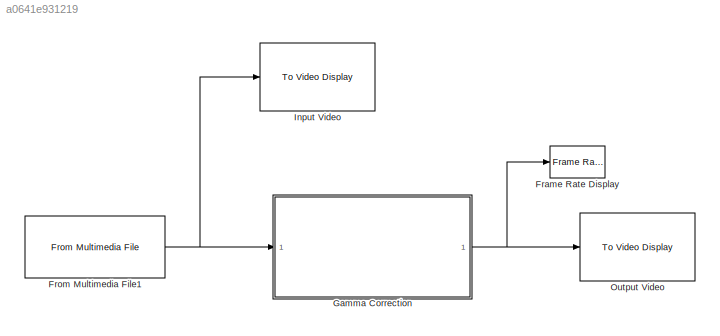
MODEL slx_a0641e931219
KIND model
CONFIG AbsTol = auto
CONFIG FixedStep = auto
CONFIG MaxStep = auto
CONFIG MinStep = auto
CONFIG PreLoadFcn = gamma = 0.45
CONFIG RelTol = 1e-3
CONFIG SampleTimeConstraint = Unconstrained
CONFIG Solver = VariableStepAuto
CONFIG SolverMode = Auto
CONFIG SolverName = VariableStepAuto
CONFIG StartTime = 0.0
CONFIG StopTime = Inf
BLOCK [Reference] Frame Rate Display  REF=visionsinks/Frame Rate
Display
  Ports = [1]
  SourceBlock = visionsinks/Frame Rate\nDisplay
  SourceType = Frame Rate Display
BLOCK [Reference] From Multimedia File1  REF=dspvision/From Multimedia File
  Ports = [0, 1]
  SourceBlock = dspvision/From Multimedia File
  SourceType = From Multimedia File
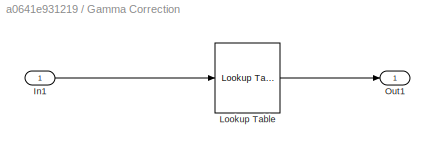
BLOCK [SubSystem] Gamma Correction
  Ports = [1, 1]
  RequestExecContextInheritance = off
  Variant = off
BLOCK [Inport] Gamma Correction/In1
  IconDisplay = Port number
BLOCK [Reference] Gamma Correction/Lookup Table  REF=ModelComposer/Lookup Table
  Description = Performs table look-up
  Ports = [1, 1]
  SourceBlock = ModelComposer/Lookup Table
  SourceType = Lookup Table
BLOCK [Outport] Gamma Correction/Out1
  IconDisplay = Port number
BLOCK [Reference] Input Video  REF=visionsinks/To Video Display
  Ports = [1]
  SourceBlock = visionsinks/To Video Display
  SourceType = To Video Display
BLOCK [Reference] Output Video  REF=visionsinks/To Video Display
  Ports = [1]
  SourceBlock = visionsinks/To Video Display
  SourceType = To Video Display
NET From Multimedia File1:1 -> Gamma Correction:1, Input Video:1
LINE Gamma Correction/In1:1 -> Gamma Correction/Lookup Table:1
LINE Gamma Correction/Lookup Table:1 -> Gamma Correction/Out1:1
NET Gamma Correction:1 -> Frame Rate Display:1, Output Video:1
note: NET lines group one-source signal fan-out (src -> all destinations, sorted); 1:1 wires keep LINE
